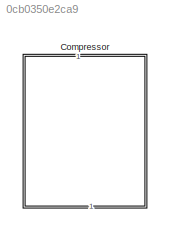
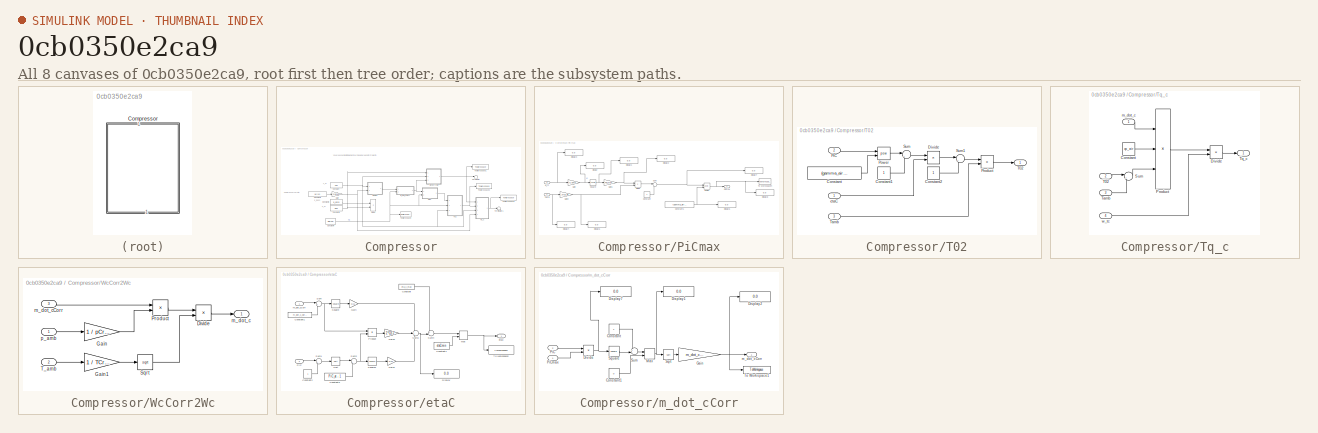
[diagram: thumbnail index - all 8 canvases of the model, root first then tree order]
MODEL slx_0cb0350e2ca9
KIND model
CONFIG AbsTol = auto
CONFIG EnableMultiTasking = off
CONFIG FixedStep = auto
CONFIG MaxStep = auto
CONFIG MinStep = auto
CONFIG RelTol = 1e-3
CONFIG SampleTimeConstraint = Unconstrained
CONFIG Solver = VariableStepAuto
CONFIG SolverName = VariableStepAuto
CONFIG StartTime = 0.0
CONFIG StopTime = 10.0
BLOCK [SubSystem] Compressor
  NameLocation = right
  Ports = []
  RequestExecContextInheritance = off
BLOCK [Constant] Compressor/Constant
  Value = T01
BLOCK [Constant] Compressor/Constant1
  Value = Nc(10)
BLOCK [Constant] Compressor/Constant2
  Value = p_amb
BLOCK [Constant] Compressor/Constant3
  Value = p01
BLOCK [Constant] Compressor/Constant4
  Value = PiC(10)
BLOCK [Product] Compressor/Divide
  Inputs = */
  Ports = [2, 1]
BLOCK [Gain] Compressor/Gain
  Gain = 2*pi/60
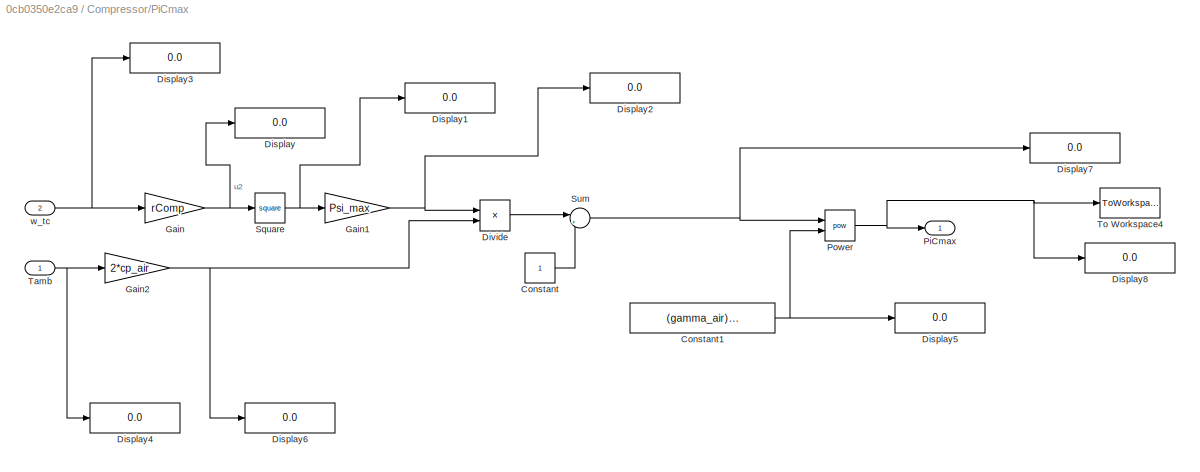
BLOCK [SubSystem] Compressor/PiCmax
  Ports = [2, 1]
  RequestExecContextInheritance = off
BLOCK [Constant] Compressor/PiCmax/Constant
BLOCK [Constant] Compressor/PiCmax/Constant1
  Value = (gamma_air) / (gamma_air - 1)
BLOCK [Display] Compressor/PiCmax/Display
  Decimation = 1
  Ports = [1]
BLOCK [Display] Compressor/PiCmax/Display1
  Decimation = 1
  Ports = [1]
BLOCK [Display] Compressor/PiCmax/Display2
  Decimation = 1
  Ports = [1]
BLOCK [Display] Compressor/PiCmax/Display3
  Decimation = 1
  Ports = [1]
BLOCK [Display] Compressor/PiCmax/Display4
  Decimation = 1
  Ports = [1]
BLOCK [Display] Compressor/PiCmax/Display5
  Decimation = 1
  Ports = [1]
BLOCK [Display] Compressor/PiCmax/Display6
  Decimation = 1
  Ports = [1]
BLOCK [Display] Compressor/PiCmax/Display7
  Decimation = 1
  Ports = [1]
BLOCK [Display] Compressor/PiCmax/Display8
  Decimation = 1
  Ports = [1]
BLOCK [Product] Compressor/PiCmax/Divide
  Inputs = */
  Ports = [2, 1]
BLOCK [Gain] Compressor/PiCmax/Gain
  Gain = rComp
BLOCK [Gain] Compressor/PiCmax/Gain1
  Gain = Psi_max
BLOCK [Gain] Compressor/PiCmax/Gain2
  Gain = 2*cp_air
BLOCK [Outport] Compressor/PiCmax/PiCmax
BLOCK [Math] Compressor/PiCmax/Power
  Operator = pow
  Ports = [2, 1]
BLOCK [Math] Compressor/PiCmax/Square
  Operator = square
  Ports = [1, 1]
BLOCK [Sum] Compressor/PiCmax/Sum
  Inputs = |++
  Ports = [2, 1]
BLOCK [Inport] Compressor/PiCmax/Tamb
BLOCK [ToWorkspace] Compressor/PiCmax/To Workspace4
  MaxDataPoints = inf
  Ports = [1]
  SampleTime = -1
  VariableName = PiC_max
BLOCK [Inport] Compressor/PiCmax/w_tc
  Port = 2
BLOCK [SubSystem] Compressor/T02
  Ports = [3, 1]
  RequestExecContextInheritance = off
BLOCK [Constant] Compressor/T02/Constant
  Value = (gamma_air - 1) / gamma_air
BLOCK [Constant] Compressor/T02/Constant1
BLOCK [Constant] Compressor/T02/Constant2
BLOCK [Product] Compressor/T02/Divide
  Inputs = */
  Ports = [2, 1]
BLOCK [Inport] Compressor/T02/PiC
  Port = 2
BLOCK [Math] Compressor/T02/Power
  Operator = pow
  Ports = [2, 1]
BLOCK [Product] Compressor/T02/Product
  Ports = [2, 1]
BLOCK [Sum] Compressor/T02/Sum
  Inputs = |+-
  Ports = [2, 1]
BLOCK [Sum] Compressor/T02/Sum1
  Inputs = |++
  Ports = [2, 1]
BLOCK [Outport] Compressor/T02/T02
BLOCK [Inport] Compressor/T02/Tamb
  Port = 3
BLOCK [Inport] Compressor/T02/etaC
BLOCK [Terminator] Compressor/Terminator
BLOCK [Terminator] Compressor/Terminator1
BLOCK [ToWorkspace] Compressor/To Workspace
  MaxDataPoints = inf
  Ports = [1]
  SampleTime = -1
  VariableName = PiC
BLOCK [ToWorkspace] Compressor/To Workspace1
  FixptAsFi = on
  MaxDataPoints = inf
  Ports = [1]
  SampleTime = -1
  VariableName = m_dot_c_sim
BLOCK [ToWorkspace] Compressor/To Workspace2
  FixptAsFi = on
  MaxDataPoints = inf
  Ports = [1]
  SampleTime = -1
  VariableName = T02_sim
BLOCK [ToWorkspace] Compressor/To Workspace3
  FixptAsFi = on
  MaxDataPoints = inf
  Ports = [1]
  SampleTime = -1
  VariableName = Tq_c_sim
BLOCK [SubSystem] Compressor/Tq_c
  Ports = [4, 1]
  RequestExecContextInheritance = off
BLOCK [Constant] Compressor/Tq_c/Constant
  Value = cp_air
BLOCK [Product] Compressor/Tq_c/Divide
  Inputs = */
  Ports = [2, 1]
BLOCK [Product] Compressor/Tq_c/Product
  Inputs = 3
  Ports = [3, 1]
BLOCK [Sum] Compressor/Tq_c/Sum
  Inputs = |+-
  Ports = [2, 1]
BLOCK [Inport] Compressor/Tq_c/T02
  Port = 2
BLOCK [Inport] Compressor/Tq_c/Tamb
  Port = 3
BLOCK [Outport] Compressor/Tq_c/Tq_c
BLOCK [Inport] Compressor/Tq_c/m_dot_c
BLOCK [Inport] Compressor/Tq_c/w_tc
  Port = 4
BLOCK [SubSystem] Compressor/WcCorr2Wc
  Ports = [3, 1]
  RequestExecContextInheritance = off
BLOCK [Product] Compressor/WcCorr2Wc/Divide
  Inputs = */
  Ports = [2, 1]
BLOCK [Gain] Compressor/WcCorr2Wc/Gain
  Gain = 1 / pCref
BLOCK [Gain] Compressor/WcCorr2Wc/Gain1
  Gain = 1 / TCref
BLOCK [Product] Compressor/WcCorr2Wc/Product
  Ports = [2, 1]
BLOCK [Sqrt] Compressor/WcCorr2Wc/Sqrt
BLOCK [Inport] Compressor/WcCorr2Wc/T_amb
  Port = 2
BLOCK [Outport] Compressor/WcCorr2Wc/m_dot_c
BLOCK [Inport] Compressor/WcCorr2Wc/m_dot_cCorr
  Port = 3
BLOCK [Inport] Compressor/WcCorr2Wc/p_amb
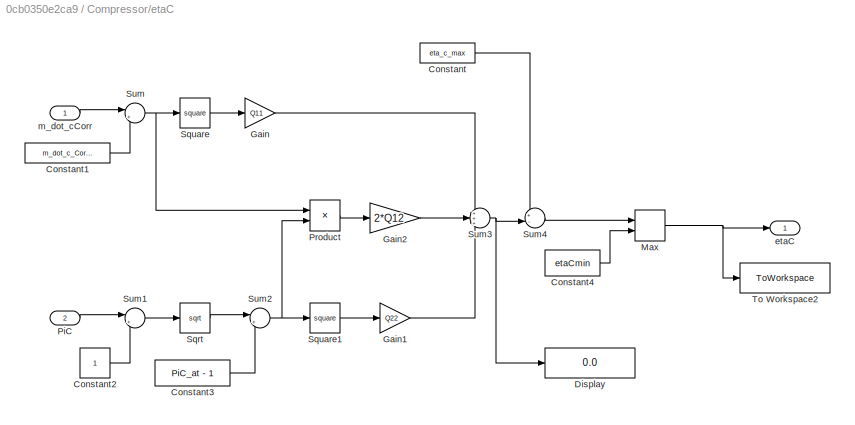
BLOCK [SubSystem] Compressor/etaC
  Ports = [2, 1]
  RequestExecContextInheritance = off
BLOCK [Constant] Compressor/etaC/Constant
  Value = eta_c_max
BLOCK [Constant] Compressor/etaC/Constant1
  Value = m_dot_c_Corr_at
BLOCK [Constant] Compressor/etaC/Constant2
BLOCK [Constant] Compressor/etaC/Constant3
  Value = PiC_at - 1
BLOCK [Constant] Compressor/etaC/Constant4
  Value = etaCmin
BLOCK [Display] Compressor/etaC/Display
  Decimation = 1
  Ports = [1]
BLOCK [Gain] Compressor/etaC/Gain
  Gain = Q11
BLOCK [Gain] Compressor/etaC/Gain1
  Gain = Q22
BLOCK [Gain] Compressor/etaC/Gain2
  Gain = 2*Q12
BLOCK [MinMax] Compressor/etaC/Max
  Function = max
  Inputs = 2
  Ports = [2, 1]
BLOCK [Inport] Compressor/etaC/PiC
  Port = 2
BLOCK [Product] Compressor/etaC/Product
  Ports = [2, 1]
BLOCK [Sqrt] Compressor/etaC/Sqrt
BLOCK [Math] Compressor/etaC/Square
  Operator = square
  Ports = [1, 1]
BLOCK [Math] Compressor/etaC/Square1
  Operator = square
  Ports = [1, 1]
BLOCK [Sum] Compressor/etaC/Sum
  Inputs = |+-
  Ports = [2, 1]
BLOCK [Sum] Compressor/etaC/Sum1
  Inputs = |+-
  Ports = [2, 1]
BLOCK [Sum] Compressor/etaC/Sum2
  Inputs = |+-
  Ports = [2, 1]
BLOCK [Sum] Compressor/etaC/Sum3
  Inputs = +++
  Ports = [3, 1]
BLOCK [Sum] Compressor/etaC/Sum4
  Inputs = +-|
  Ports = [2, 1]
BLOCK [ToWorkspace] Compressor/etaC/To Workspace2
  FixptAsFi = on
  MaxDataPoints = inf
  Ports = [1]
  SampleTime = -1
  VariableName = etaC
BLOCK [Outport] Compressor/etaC/etaC
BLOCK [Inport] Compressor/etaC/m_dot_cCorr
BLOCK [SubSystem] Compressor/m_dot_cCorr
  Ports = [2, 1]
  RequestExecContextInheritance = off
BLOCK [Constant] Compressor/m_dot_cCorr/Constant
BLOCK [Constant] Compressor/m_dot_cCorr/Constant1
  Value = 0
BLOCK [Display] Compressor/m_dot_cCorr/Display1
  Decimation = 1
  Ports = [1]
BLOCK [Display] Compressor/m_dot_cCorr/Display2
  Decimation = 1
  Ports = [1]
BLOCK [Display] Compressor/m_dot_cCorr/Display7
  Decimation = 1
  Ports = [1]
BLOCK [Product] Compressor/m_dot_cCorr/Divide
  Inputs = */
  Ports = [2, 1]
BLOCK [Gain] Compressor/m_dot_cCorr/Gain
  Gain = m_dot_cCorr_max
BLOCK [MinMax] Compressor/m_dot_cCorr/Max
  Function = max
  Inputs = 2
  Ports = [2, 1]
BLOCK [Inport] Compressor/m_dot_cCorr/PiC
  Port = 2
BLOCK [Inport] Compressor/m_dot_cCorr/PiCmax
BLOCK [Sqrt] Compressor/m_dot_cCorr/Sqrt
BLOCK [Math] Compressor/m_dot_cCorr/Square
  Operator = square
  Ports = [1, 1]
BLOCK [Sum] Compressor/m_dot_cCorr/Sum
  Inputs = +-|
  Ports = [2, 1]
BLOCK [ToWorkspace] Compressor/m_dot_cCorr/To Workspace1
  MaxDataPoints = inf
  Ports = [1]
  SampleTime = -1
  VariableName = m_dot_cCorr
BLOCK [Outport] Compressor/m_dot_cCorr/m_dot_cCorr
ANNOTATION Compressor: Kompressorvarvtal
ANNOTATION Compressor: T_af
ANNOTATION Compressor: You are expected to implement your model here, only for Project 2!
ANNOTATION Compressor: p_af
ANNOTATION Compressor: p_ic, p02
LINE Compressor/Constant1:1 -> Compressor/Gain:1
LINE Compressor/Constant2:1 -> Compressor/Divide:1
NET Compressor/Constant3:1 -> Compressor/Divide:2, Compressor/WcCorr2Wc:1
NET Compressor/Constant4:1 -> Compressor/T02:2, Compressor/To Workspace:1, Compressor/etaC:2, Compressor/m_dot_cCorr:2
NET Compressor/Constant:1 -> Compressor/PiCmax:1, Compressor/T02:3, Compressor/Tq_c:3, Compressor/WcCorr2Wc:2
NET Compressor/Gain:1 -> Compressor/PiCmax:2, Compressor/Tq_c:4
NET Compressor/PiCmax/Constant1:1 -> Compressor/PiCmax/Display5:1, Compressor/PiCmax/Power:2
LINE Compressor/PiCmax/Constant:1 -> Compressor/PiCmax/Sum:2
LINE Compressor/PiCmax/Divide:1 -> Compressor/PiCmax/Sum:1
NET Compressor/PiCmax/Gain1:1 -> Compressor/PiCmax/Display2:1, Compressor/PiCmax/Divide:1
NET Compressor/PiCmax/Gain2:1 -> Compressor/PiCmax/Display6:1, Compressor/PiCmax/Divide:2
NET Compressor/PiCmax/Gain:1 -> Compressor/PiCmax/Display:1, Compressor/PiCmax/Square:1
NET Compressor/PiCmax/Power:1 -> Compressor/PiCmax/Display8:1, Compressor/PiCmax/PiCmax:1, Compressor/PiCmax/To Workspace4:1
NET Compressor/PiCmax/Square:1 -> Compressor/PiCmax/Display1:1, Compressor/PiCmax/Gain1:1
NET Compressor/PiCmax/Sum:1 -> Compressor/PiCmax/Display7:1, Compressor/PiCmax/Power:1
NET Compressor/PiCmax/Tamb:1 -> Compressor/PiCmax/Display4:1, Compressor/PiCmax/Gain2:1
NET Compressor/PiCmax/w_tc:1 -> Compressor/PiCmax/Display3:1, Compressor/PiCmax/Gain:1
LINE Compressor/PiCmax:1 -> Compressor/m_dot_cCorr:1
LINE Compressor/T02/Constant1:1 -> Compressor/T02/Sum:2
LINE Compressor/T02/Constant2:1 -> Compressor/T02/Sum1:2
LINE Compressor/T02/Constant:1 -> Compressor/T02/Power:2
LINE Compressor/T02/Divide:1 -> Compressor/T02/Sum1:1
LINE Compressor/T02/PiC:1 -> Compressor/T02/Power:1
LINE Compressor/T02/Power:1 -> Compressor/T02/Sum:1
LINE Compressor/T02/Product:1 -> Compressor/T02/T02:1
LINE Compressor/T02/Sum1:1 -> Compressor/T02/Product:1
LINE Compressor/T02/Sum:1 -> Compressor/T02/Divide:1
LINE Compressor/T02/Tamb:1 -> Compressor/T02/Product:2
LINE Compressor/T02/etaC:1 -> Compressor/T02/Divide:2
NET Compressor/T02:1 -> Compressor/To Workspace2:1, Compressor/Tq_c:2
LINE Compressor/Tq_c/Constant:1 -> Compressor/Tq_c/Product:2
LINE Compressor/Tq_c/Divide:1 -> Compressor/Tq_c/Tq_c:1
LINE Compressor/Tq_c/Product:1 -> Compressor/Tq_c/Divide:1
LINE Compressor/Tq_c/Sum:1 -> Compressor/Tq_c/Product:3
LINE Compressor/Tq_c/T02:1 -> Compressor/Tq_c/Sum:1
LINE Compressor/Tq_c/Tamb:1 -> Compressor/Tq_c/Sum:2
LINE Compressor/Tq_c/m_dot_c:1 -> Compressor/Tq_c/Product:1
LINE Compressor/Tq_c/w_tc:1 -> Compressor/Tq_c/Divide:2
NET Compressor/Tq_c:1 -> Compressor/Terminator1:1, Compressor/To Workspace3:1
LINE Compressor/WcCorr2Wc/Divide:1 -> Compressor/WcCorr2Wc/m_dot_c:1
LINE Compressor/WcCorr2Wc/Gain1:1 -> Compressor/WcCorr2Wc/Sqrt:1
LINE Compressor/WcCorr2Wc/Gain:1 -> Compressor/WcCorr2Wc/Product:2
LINE Compressor/WcCorr2Wc/Product:1 -> Compressor/WcCorr2Wc/Divide:1
LINE Compressor/WcCorr2Wc/Sqrt:1 -> Compressor/WcCorr2Wc/Divide:2
LINE Compressor/WcCorr2Wc/T_amb:1 -> Compressor/WcCorr2Wc/Gain1:1
LINE Compressor/WcCorr2Wc/m_dot_cCorr:1 -> Compressor/WcCorr2Wc/Product:1
LINE Compressor/WcCorr2Wc/p_amb:1 -> Compressor/WcCorr2Wc/Gain:1
NET Compressor/WcCorr2Wc:1 -> Compressor/Terminator:1, Compressor/To Workspace1:1, Compressor/Tq_c:1
LINE Compressor/etaC/Constant1:1 -> Compressor/etaC/Sum:2
LINE Compressor/etaC/Constant2:1 -> Compressor/etaC/Sum1:2
LINE Compressor/etaC/Constant3:1 -> Compressor/etaC/Sum2:2
LINE Compressor/etaC/Constant4:1 -> Compressor/etaC/Max:2
LINE Compressor/etaC/Constant:1 -> Compressor/etaC/Sum4:1
LINE Compressor/etaC/Gain1:1 -> Compressor/etaC/Sum3:3
LINE Compressor/etaC/Gain2:1 -> Compressor/etaC/Sum3:2
LINE Compressor/etaC/Gain:1 -> Compressor/etaC/Sum3:1
NET Compressor/etaC/Max:1 -> Compressor/etaC/To Workspace2:1, Compressor/etaC/etaC:1
LINE Compressor/etaC/PiC:1 -> Compressor/etaC/Sum1:1
LINE Compressor/etaC/Product:1 -> Compressor/etaC/Gain2:1
LINE Compressor/etaC/Sqrt:1 -> Compressor/etaC/Sum2:1
LINE Compressor/etaC/Square1:1 -> Compressor/etaC/Gain1:1
LINE Compressor/etaC/Square:1 -> Compressor/etaC/Gain:1
LINE Compressor/etaC/Sum1:1 -> Compressor/etaC/Sqrt:1
NET Compressor/etaC/Sum2:1 -> Compressor/etaC/Product:2, Compressor/etaC/Square1:1
NET Compressor/etaC/Sum3:1 -> Compressor/etaC/Display:1, Compressor/etaC/Sum4:2
LINE Compressor/etaC/Sum4:1 -> Compressor/etaC/Max:1
NET Compressor/etaC/Sum:1 -> Compressor/etaC/Product:1, Compressor/etaC/Square:1
LINE Compressor/etaC/m_dot_cCorr:1 -> Compressor/etaC/Sum:1
LINE Compressor/etaC:1 -> Compressor/T02:1
LINE Compressor/m_dot_cCorr/Constant1:1 -> Compressor/m_dot_cCorr/Max:2
LINE Compressor/m_dot_cCorr/Constant:1 -> Compressor/m_dot_cCorr/Sum:1
NET Compressor/m_dot_cCorr/Divide:1 -> Compressor/m_dot_cCorr/Display7:1, Compressor/m_dot_cCorr/Square:1
NET Compressor/m_dot_cCorr/Gain:1 -> Compressor/m_dot_cCorr/Display2:1, Compressor/m_dot_cCorr/To Workspace1:1, Compressor/m_dot_cCorr/m_dot_cCorr:1
NET Compressor/m_dot_cCorr/Max:1 -> Compressor/m_dot_cCorr/Display1:1, Compressor/m_dot_cCorr/Sqrt:1
LINE Compressor/m_dot_cCorr/PiC:1 -> Compressor/m_dot_cCorr/Divide:1
LINE Compressor/m_dot_cCorr/PiCmax:1 -> Compressor/m_dot_cCorr/Divide:2
LINE Compressor/m_dot_cCorr/Sqrt:1 -> Compressor/m_dot_cCorr/Gain:1
LINE Compressor/m_dot_cCorr/Square:1 -> Compressor/m_dot_cCorr/Sum:2
LINE Compressor/m_dot_cCorr/Sum:1 -> Compressor/m_dot_cCorr/Max:1
NET Compressor/m_dot_cCorr:1 -> Compressor/WcCorr2Wc:3, Compressor/etaC:1
note: NET lines group one-source signal fan-out (src -> all destinations, sorted); 1:1 wires keep LINE
